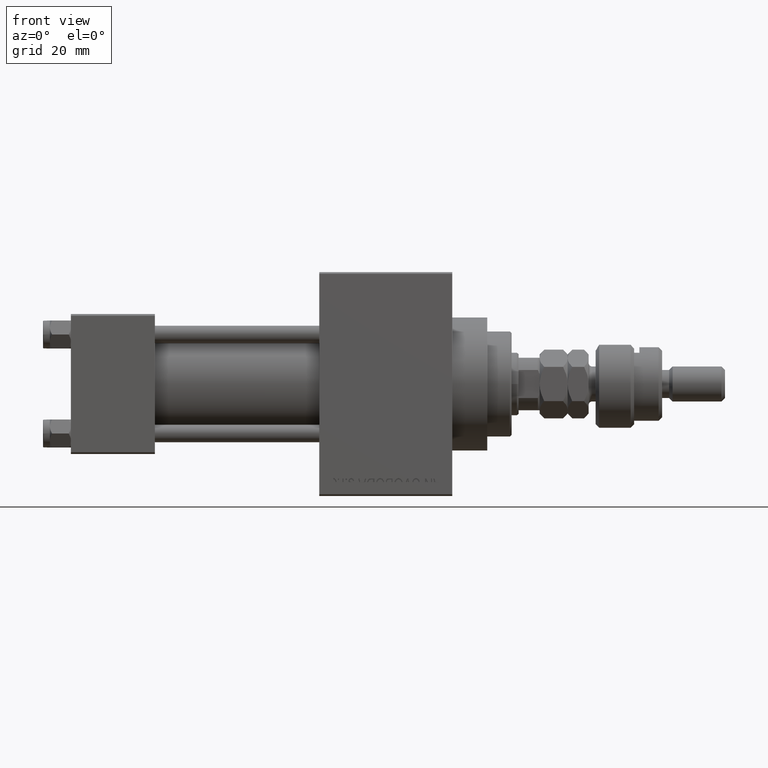
[diagram: clean part render]
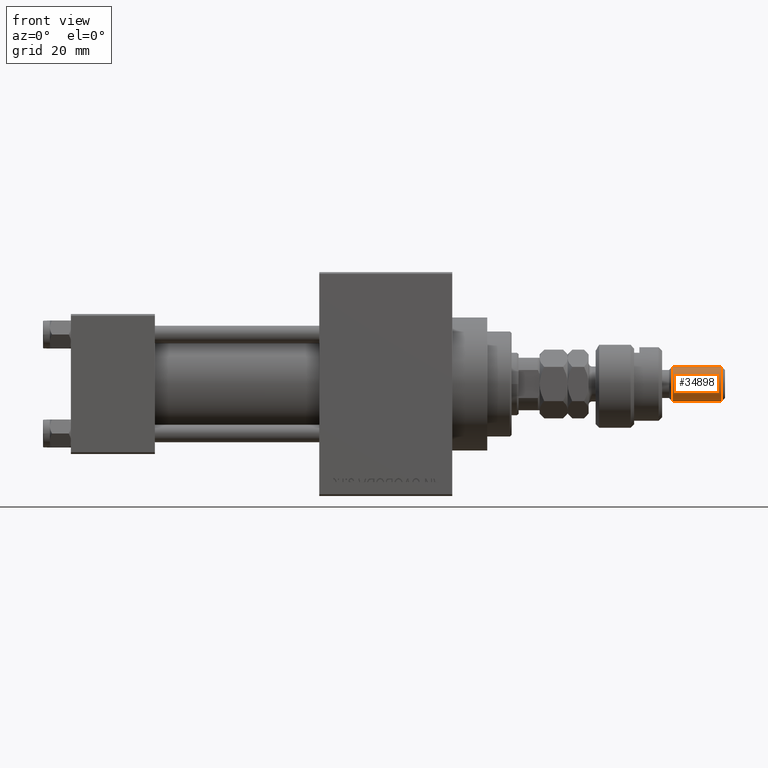
[diagram: same view with one face highlighted and labeled with its STEP entity id]
A machine part, front view. The second image highlights one B-rep face of the part: STEP entity #34898.
In plain terms, the highlighted cylindrical surface (edge-blend (fillet) strip) has radius 5 mm, axis along (-1, -0, 0).
Its self-contained STEP definition (entity closure, byte-faithful):
#1338 = AXIS2_PLACEMENT_3D ( 'NONE', #4586, #5085, #39876 ) ;
#1433 = VERTEX_POINT ( 'NONE', #31645 ) ;
#1620 = EDGE_CURVE ( 'NONE', #6496, #26959, #17460, .T. ) ;
#2364 = CARTESIAN_POINT ( 'NONE',  ( 5.000000000000000888, 6.123233995736767268E-16, 21.99999999999999289 ) ) ;
#4586 = CARTESIAN_POINT ( 'NONE',  ( 0.000000000000000000, 0.000000000000000000, 37.00000000000000000 ) ) ;
#5085 = DIRECTION ( 'NONE',  ( -0.000000000000000000, -0.000000000000000000, -1.000000000000000000 ) ) ;
#5088 = VECTOR ( 'NONE', #12957, 1000.000000000000000 ) ;
#5174 = DIRECTION ( 'NONE',  ( 1.000000000000000000, 0.000000000000000000, 0.000000000000000000 ) ) ;
#5628 = DIRECTION ( 'NONE',  ( -0.000000000000000000, -0.000000000000000000, 1.000000000000000000 ) ) ;
#6496 = VERTEX_POINT ( 'NONE', #48907 ) ;
#7395 = CIRCLE ( 'NONE', #24323, 5.000000000000000888 ) ;
#8037 = ORIENTED_EDGE ( 'NONE', *, *, #21169, .T. ) ;
#9378 = FACE_OUTER_BOUND ( 'NONE', #33342, .T. ) ;
#9692 = LINE ( 'NONE', #10439, #11665 ) ;
#10439 = CARTESIAN_POINT ( 'NONE',  ( -5.000000000000000888, 0.000000000000000000, 37.00000000000000000 ) ) ;
#11665 = VECTOR ( 'NONE', #40454, 1000.000000000000000 ) ;
#12957 = DIRECTION ( 'NONE',  ( -0.000000000000000000, -0.000000000000000000, -1.000000000000000000 ) ) ;
#16745 = CARTESIAN_POINT ( 'NONE',  ( 5.000000000000000888, 6.123233995736767268E-16, 37.00000000000000000 ) ) ;
#17460 = CIRCLE ( 'NONE', #45616, 5.000000000000000888 ) ;
#21169 = EDGE_CURVE ( 'NONE', #1433, #44964, #7395, .T. ) ;
#24301 = EDGE_CURVE ( 'NONE', #6496, #44964, #43201, .T. ) ;
#24323 = AXIS2_PLACEMENT_3D ( 'NONE', #24553, #5628, #24807 ) ;
#24346 = DIRECTION ( 'NONE',  ( 0.000000000000000000, 0.000000000000000000, -1.000000000000000000 ) ) ;
#24553 = CARTESIAN_POINT ( 'NONE',  ( 0.000000000000000000, 0.000000000000000000, 21.99999999999999289 ) ) ;
#24807 = DIRECTION ( 'NONE',  ( 1.000000000000000000, 0.000000000000000000, 0.000000000000000000 ) ) ;
#26253 = ORIENTED_EDGE ( 'NONE', *, *, #24301, .F. ) ;
#26959 = VERTEX_POINT ( 'NONE', #29987 ) ;
#29157 = ORIENTED_EDGE ( 'NONE', *, *, #46054, .T. ) ;
#29987 = CARTESIAN_POINT ( 'NONE',  ( -5.000000000000000888, 0.000000000000000000, 36.00000000000000711 ) ) ;
#31645 = CARTESIAN_POINT ( 'NONE',  ( -5.000000000000000888, 0.000000000000000000, 21.99999999999999289 ) ) ;
#33342 = EDGE_LOOP ( 'NONE', ( #26253, #45799, #29157, #8037 ) ) ;
#34898 = ADVANCED_FACE ( 'NONE', ( #9378 ), #39616, .T. ) ;
#39616 = CYLINDRICAL_SURFACE ( 'NONE', #1338, 5.000000000000000888 ) ;
#39876 = DIRECTION ( 'NONE',  ( -1.000000000000000000, 0.000000000000000000, 0.000000000000000000 ) ) ;
#40454 = DIRECTION ( 'NONE',  ( -0.000000000000000000, -0.000000000000000000, -1.000000000000000000 ) ) ;
#43201 = LINE ( 'NONE', #16745, #5088 ) ;
#44964 = VERTEX_POINT ( 'NONE', #2364 ) ;
#45616 = AXIS2_PLACEMENT_3D ( 'NONE', #48271, #24346, #5174 ) ;
#45799 = ORIENTED_EDGE ( 'NONE', *, *, #1620, .T. ) ;
#46054 = EDGE_CURVE ( 'NONE', #26959, #1433, #9692, .T. ) ;
#48271 = CARTESIAN_POINT ( 'NONE',  ( 0.000000000000000000, 0.000000000000000000, 36.00000000000000711 ) ) ;
#48907 = CARTESIAN_POINT ( 'NONE',  ( 5.000000000000000888, 6.123233995736767268E-16, 36.00000000000000711 ) ) ;